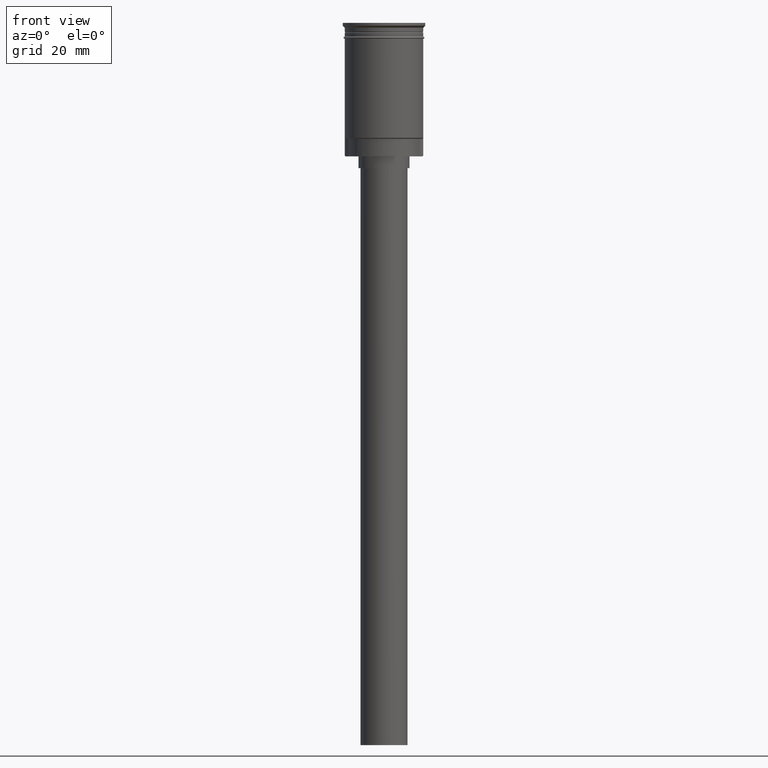
[diagram: clean part render]
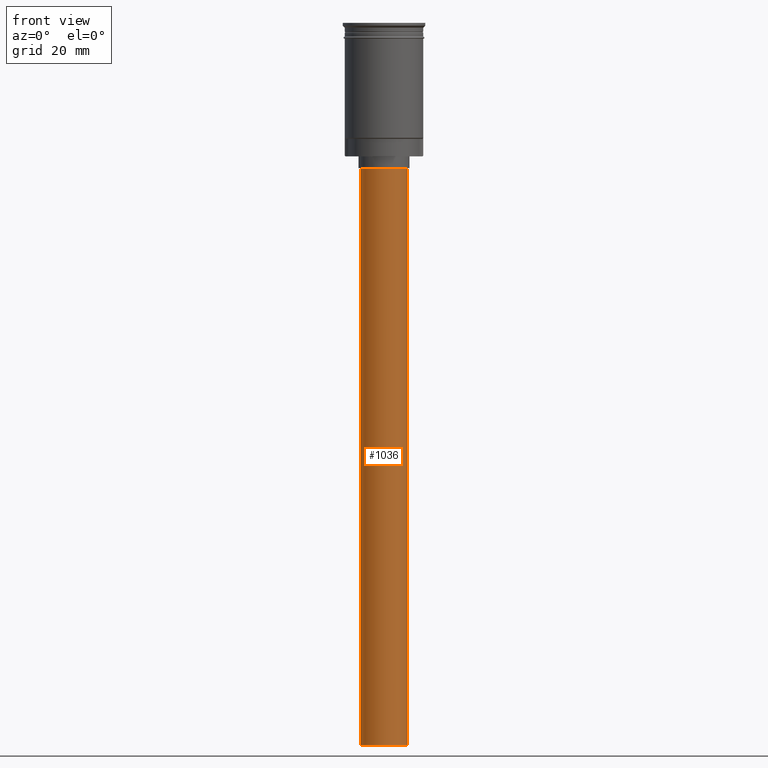
[diagram: same view with one face highlighted and labeled with its STEP entity id]
A machine part, front view. The second image highlights one B-rep face of the part: STEP entity #1036.
In plain terms, the highlighted cylindrical surface (edge-blend (fillet) strip) has radius 6 mm, axis along (-0, -0, 1).
Its self-contained STEP definition (entity closure, byte-faithful):
#27 = EDGE_CURVE ( 'NONE', #335, #141, #365, .T. ) ;
#90 = ORIENTED_EDGE ( 'NONE', *, *, #1218, .F. ) ;
#92 = CARTESIAN_POINT ( 'NONE',  ( -6.000000000000000888, 7.347880794884120722E-16, -37.00000000000000000 ) ) ;
#119 = CARTESIAN_POINT ( 'NONE',  ( -6.000000000000000888, 7.347880794884120722E-16, -184.0000000000000000 ) ) ;
#141 = VERTEX_POINT ( 'NONE', #422 ) ;
#145 = CARTESIAN_POINT ( 'NONE',  ( 0.000000000000000000, 0.000000000000000000, -37.00000000000000000 ) ) ;
#240 = EDGE_CURVE ( 'NONE', #335, #615, #562, .T. ) ;
#253 = DIRECTION ( 'NONE',  ( 0.000000000000000000, 0.000000000000000000, -1.000000000000000000 ) ) ;
#261 = DIRECTION ( 'NONE',  ( 0.000000000000000000, 0.000000000000000000, -1.000000000000000000 ) ) ;
#289 = EDGE_CURVE ( 'NONE', #141, #1592, #300, .T. ) ;
#300 = CIRCLE ( 'NONE', #507, 6.000000000000000888 ) ;
#335 = VERTEX_POINT ( 'NONE', #399 ) ;
#365 = LINE ( 'NONE', #1487, #561 ) ;
#390 = DIRECTION ( 'NONE',  ( -1.000000000000000000, 0.000000000000000000, 0.000000000000000000 ) ) ;
#399 = CARTESIAN_POINT ( 'NONE',  ( 6.000000000000000888, 0.000000000000000000, -184.0000000000000000 ) ) ;
#422 = CARTESIAN_POINT ( 'NONE',  ( 6.000000000000000888, 0.000000000000000000, -37.00000000000000000 ) ) ;
#507 = AXIS2_PLACEMENT_3D ( 'NONE', #145, #253, #390 ) ;
#561 = VECTOR ( 'NONE', #894, 1000.000000000000000 ) ;
#562 = CIRCLE ( 'NONE', #1599, 6.000000000000000888 ) ;
#594 = AXIS2_PLACEMENT_3D ( 'NONE', #786, #800, #1540 ) ;
#615 = VERTEX_POINT ( 'NONE', #119 ) ;
#786 = CARTESIAN_POINT ( 'NONE',  ( 0.000000000000000000, 0.000000000000000000, -184.0000000000000000 ) ) ;
#800 = DIRECTION ( 'NONE',  ( -0.000000000000000000, -0.000000000000000000, 1.000000000000000000 ) ) ;
#809 = DIRECTION ( 'NONE',  ( -0.000000000000000000, -0.000000000000000000, 1.000000000000000000 ) ) ;
#814 = LINE ( 'NONE', #1417, #1443 ) ;
#842 = CYLINDRICAL_SURFACE ( 'NONE', #594, 6.000000000000000888 ) ;
#884 = CARTESIAN_POINT ( 'NONE',  ( 0.000000000000000000, 0.000000000000000000, -184.0000000000000000 ) ) ;
#894 = DIRECTION ( 'NONE',  ( -0.000000000000000000, -0.000000000000000000, 1.000000000000000000 ) ) ;
#1036 = ADVANCED_FACE ( 'NONE', ( #1586 ), #842, .T. ) ;
#1053 = ORIENTED_EDGE ( 'NONE', *, *, #240, .F. ) ;
#1218 = EDGE_CURVE ( 'NONE', #615, #1592, #814, .T. ) ;
#1360 = DIRECTION ( 'NONE',  ( -1.000000000000000000, 0.000000000000000000, 0.000000000000000000 ) ) ;
#1417 = CARTESIAN_POINT ( 'NONE',  ( -6.000000000000000888, 7.347880794884120722E-16, -184.0000000000000000 ) ) ;
#1443 = VECTOR ( 'NONE', #809, 1000.000000000000000 ) ;
#1463 = ORIENTED_EDGE ( 'NONE', *, *, #289, .T. ) ;
#1466 = EDGE_LOOP ( 'NONE', ( #90, #1053, #1588, #1463 ) ) ;
#1487 = CARTESIAN_POINT ( 'NONE',  ( 6.000000000000000888, 0.000000000000000000, -184.0000000000000000 ) ) ;
#1540 = DIRECTION ( 'NONE',  ( 1.000000000000000000, 0.000000000000000000, 0.000000000000000000 ) ) ;
#1586 = FACE_OUTER_BOUND ( 'NONE', #1466, .T. ) ;
#1588 = ORIENTED_EDGE ( 'NONE', *, *, #27, .T. ) ;
#1592 = VERTEX_POINT ( 'NONE', #92 ) ;
#1599 = AXIS2_PLACEMENT_3D ( 'NONE', #884, #261, #1360 ) ;